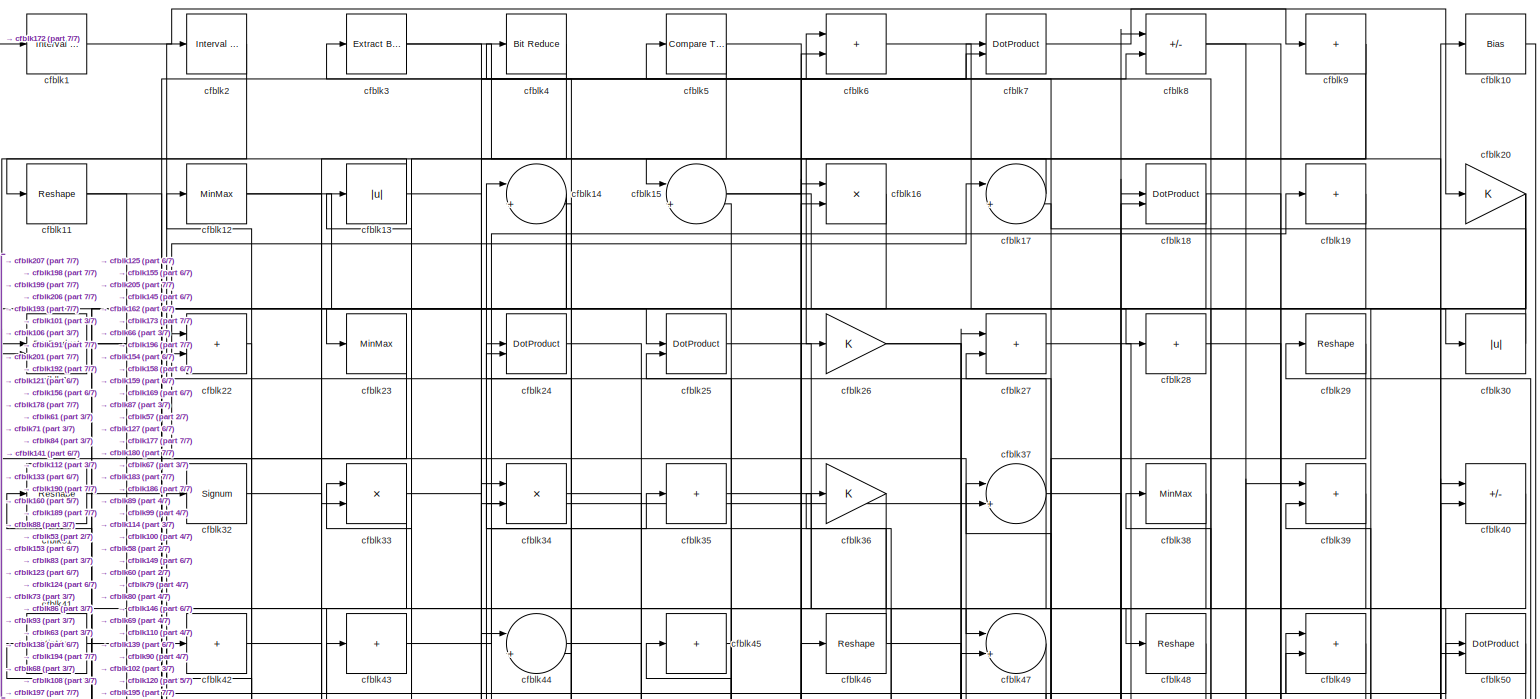
[diagram: root canvas - part 1/7, full width, top band]
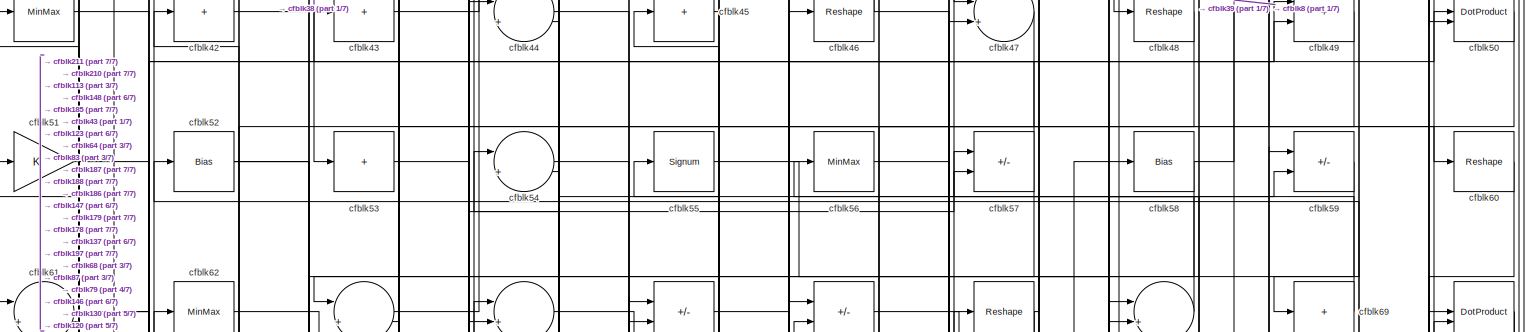
[diagram: root canvas - part 2/7, full width, top band]
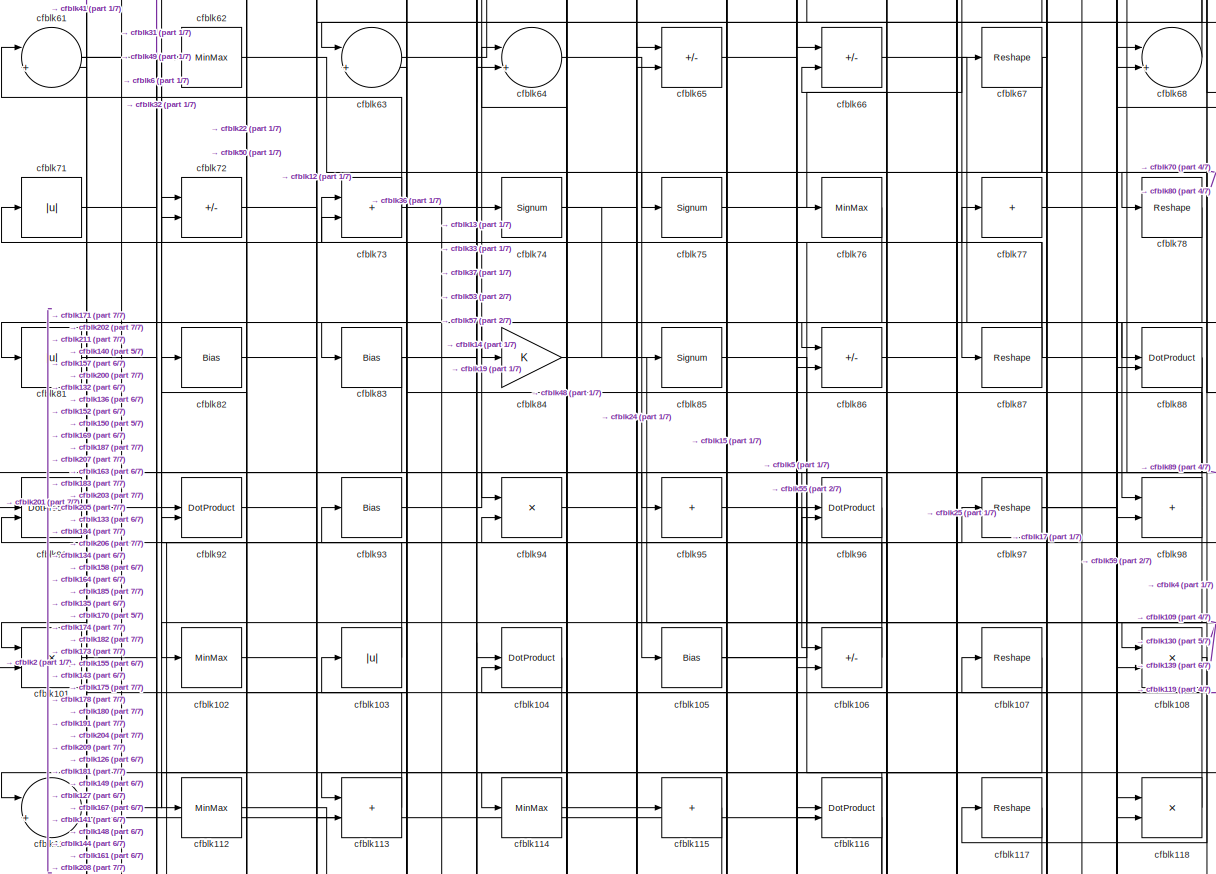
[diagram: root canvas - part 3/7, full width, middle band]
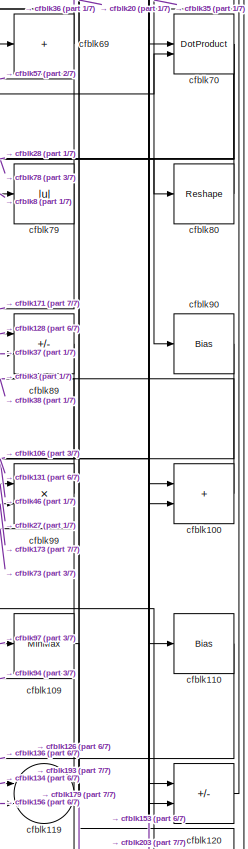
[diagram: root canvas - part 4/7, middle right region]
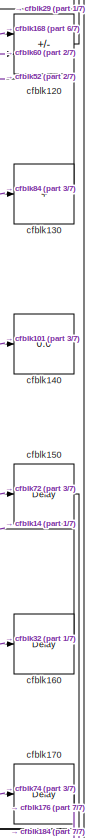
[diagram: root canvas - part 5/7, middle right region]
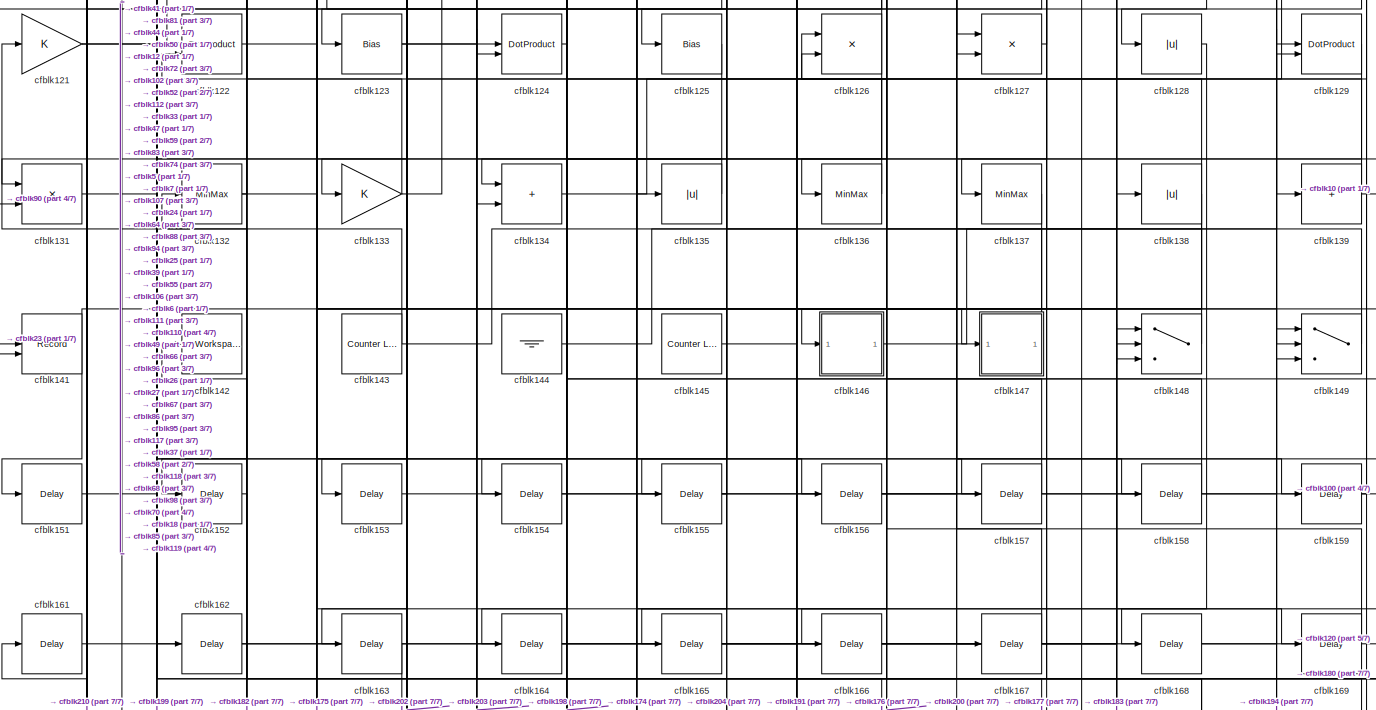
[diagram: root canvas - part 6/7, full width, middle band]
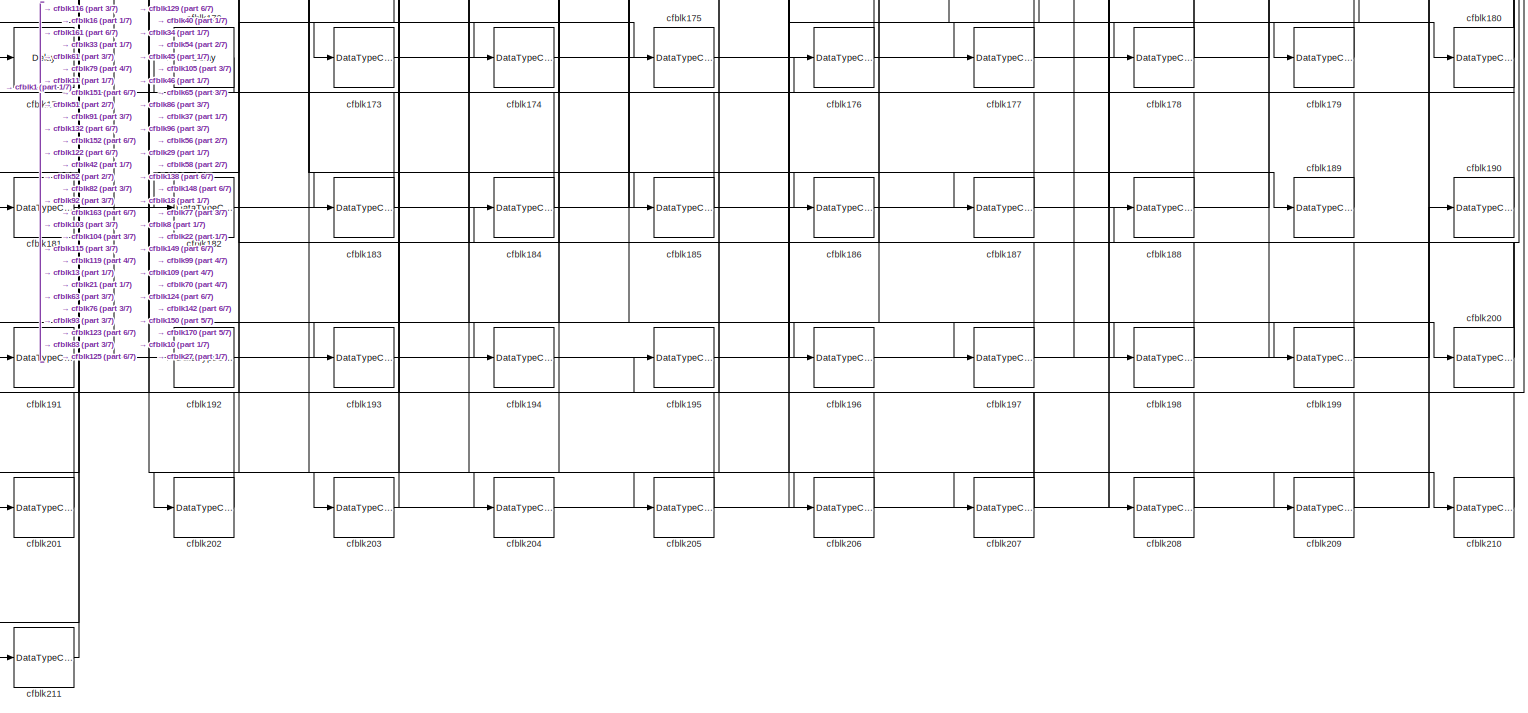
[diagram: root canvas - part 7/7, full width, bottom band]
MODEL slx_5fc4e832ac44
KIND model
CONFIG AbsTol = auto
CONFIG EnableMultiTasking = off
CONFIG FixedStep = auto
CONFIG MaxStep = auto
CONFIG MinStep = auto
CONFIG RelTol = 1e-3
CONFIG SampleTimeConstraint = Unconstrained
CONFIG SolverName = VariableStepAuto
CONFIG StartTime = 0.0
CONFIG StopTime = 10.0
BLOCK [Reference] cfblk1  REF=hdlsllib/Logic and Bit
Operations/Interval Test
  SourceBlock = hdlsllib/Logic and Bit\nOperations/Interval Test
  SourceType = Interval Test
BLOCK [Bias] cfblk10
  Bias = 0.0
  SaturateOnIntegerOverflow = off
BLOCK [Sum] cfblk100
  IconShape = rectangular
BLOCK [Product] cfblk101
  Inputs = */
  RndMeth = Zero
  SaturateOnIntegerOverflow = on
BLOCK [MinMax] cfblk102
BLOCK [Abs] cfblk103
  SaturateOnIntegerOverflow = off
BLOCK [DotProduct] cfblk104
  OutDataTypeStr = Inherit: Inherit via internal rule
BLOCK [Bias] cfblk105
  Bias = 0.0
  SaturateOnIntegerOverflow = off
BLOCK [Sum] cfblk106
  IconShape = rectangular
  Inputs = +-
BLOCK [Reshape] cfblk107
BLOCK [Product] cfblk108
  Inputs = */
  RndMeth = Zero
  SaturateOnIntegerOverflow = on
BLOCK [MinMax] cfblk109
BLOCK [Reshape] cfblk11
BLOCK [Bias] cfblk110
  Bias = 0.0
  SaturateOnIntegerOverflow = off
BLOCK [Sum] cfblk111
  Inputs = |++
BLOCK [MinMax] cfblk112
BLOCK [Sum] cfblk113
  IconShape = rectangular
BLOCK [MinMax] cfblk114
BLOCK [Sum] cfblk115
  IconShape = rectangular
  Inputs = +
BLOCK [DotProduct] cfblk116
  OutDataTypeStr = Inherit: Inherit via internal rule
BLOCK [Reshape] cfblk117
BLOCK [Product] cfblk118
  Inputs = */
  RndMeth = Zero
  SaturateOnIntegerOverflow = on
BLOCK [Sum] cfblk119
  Inputs = |++
BLOCK [MinMax] cfblk12
BLOCK [Sum] cfblk120
  IconShape = rectangular
  Inputs = +-
BLOCK [Gain] cfblk121
BLOCK [DotProduct] cfblk122
  OutDataTypeStr = Inherit: Inherit via internal rule
BLOCK [Bias] cfblk123
  Bias = 0.0
  SaturateOnIntegerOverflow = off
BLOCK [DotProduct] cfblk124
  OutDataTypeStr = Inherit: Inherit via internal rule
BLOCK [Bias] cfblk125
  Bias = 0.0
  SaturateOnIntegerOverflow = off
BLOCK [Product] cfblk126
  Inputs = */
  RndMeth = Zero
  SaturateOnIntegerOverflow = on
BLOCK [Product] cfblk127
  Inputs = */
  RndMeth = Zero
  SaturateOnIntegerOverflow = on
BLOCK [Abs] cfblk128
  SaturateOnIntegerOverflow = off
BLOCK [DotProduct] cfblk129
  OutDataTypeStr = Inherit: Inherit via internal rule
BLOCK [Abs] cfblk13
  SaturateOnIntegerOverflow = off
BLOCK [Sum] cfblk130
  IconShape = rectangular
  Inputs = +
BLOCK [Product] cfblk131
  Inputs = */
  RndMeth = Zero
  SaturateOnIntegerOverflow = on
BLOCK [MinMax] cfblk132
BLOCK [Gain] cfblk133
BLOCK [Sum] cfblk134
  IconShape = rectangular
BLOCK [Abs] cfblk135
  SaturateOnIntegerOverflow = off
BLOCK [MinMax] cfblk136
BLOCK [MinMax] cfblk137
BLOCK [Abs] cfblk138
  SaturateOnIntegerOverflow = off
BLOCK [Sum] cfblk139
  IconShape = rectangular
  Inputs = +
BLOCK [Sum] cfblk14
  Inputs = |++
BLOCK [Display] cfblk140
  Decimation = 1
BLOCK [Record] cfblk141
  CompatibilityTag = XY
  FileSettingsInternal = {"entries":[{"content":{"excelSettings":{"content":{},"type":"Streamout.ExcelSettings"}},"type":"Streamout.FileSettingStorage","uuid":""}],"packageUris":["http:\/\/schema.mathworks.com\/mf0\/streamout_blocks\/R2020a"],"version":"1.0"}
  Layout = [1 1]
  SignalsInternal = {"entries":[{"content":{"signals":[{"content":{"blockPath":[],"dimensions":[1],"domain":"","lineColor":"#a2142f","plots":[1],"port":1,"signalID":2030,"signalName":"XY Graph:1"},"type":"RecordBlkView.Signal","uuid":""},{"content":{"blockPath":[],"dimensions":[1],"domain":"","lineColor":"#139fff","plots":[1],"port":2,"signalID":2033,"signalName":"XY Graph:2"},"type":"RecordBlkView.Signal","uuid":""}...<+146ch>
  VisualizationBindings = {"xyplotplugin":{"info":[{"series":[{"bindingParametersList":[{"parameter":"X-Axis","signalID":2030,"signalName":"XY Graph:1"},{"parameter":"Y-Axis","signalID":2033,"signalName":"XY Graph:2"}],"seriesID":50669}],"subplotID":1}]}}
  st = -1
BLOCK [ToWorkspace] cfblk142
  MaxDataPoints = inf
  SampleTime = -1
  SaveFormat = Timeseries
  VariableName = simout
BLOCK [Reference] cfblk143  REF=hdlsllib/Sources/Counter
Limited
  SourceBlock = hdlsllib/Sources/Counter\nLimited
  SourceType = Counter Limited
BLOCK [Ground] cfblk144
BLOCK [Reference] cfblk145  REF=hdlsllib/Sources/Counter
Limited
  SourceBlock = hdlsllib/Sources/Counter\nLimited
  SourceType = Counter Limited
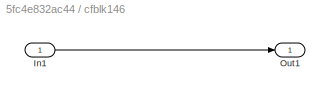
BLOCK [SubSystem] cfblk146
  LibrarySourceBlock = hdlsllib/Ports &\nSubsystems/Subsystem
BLOCK [Inport] cfblk146/In1
BLOCK [Outport] cfblk146/Out1
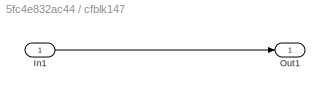
BLOCK [SubSystem] cfblk147
  LibrarySourceBlock = hdlsllib/Ports &\nSubsystems/Subsystem
BLOCK [Inport] cfblk147/In1
BLOCK [Outport] cfblk147/Out1
BLOCK [Switch] cfblk148
  InputSameDT = off
  SaturateOnIntegerOverflow = off
BLOCK [Switch] cfblk149
  InputSameDT = off
  SaturateOnIntegerOverflow = off
BLOCK [Sum] cfblk15
  Inputs = |++
BLOCK [Delay] cfblk150
  InputPortMap = u0
  SampleTime = 1
BLOCK [Delay] cfblk151
  InputPortMap = u0
  SampleTime = 1
BLOCK [Delay] cfblk152
  InputPortMap = u0
  SampleTime = 1
BLOCK [Delay] cfblk153
  InputPortMap = u0
  SampleTime = 1
BLOCK [Delay] cfblk154
  InputPortMap = u0
  SampleTime = 1
BLOCK [Delay] cfblk155
  InputPortMap = u0
  SampleTime = 1
BLOCK [Delay] cfblk156
  InputPortMap = u0
  SampleTime = 1
BLOCK [Delay] cfblk157
  InputPortMap = u0
  SampleTime = 1
BLOCK [Delay] cfblk158
  InputPortMap = u0
  SampleTime = 1
BLOCK [Delay] cfblk159
  InputPortMap = u0
  SampleTime = 1
BLOCK [Product] cfblk16
  Inputs = */
  RndMeth = Zero
  SaturateOnIntegerOverflow = on
BLOCK [Delay] cfblk160
  InputPortMap = u0
  SampleTime = 1
BLOCK [Delay] cfblk161
  InputPortMap = u0
  SampleTime = 1
BLOCK [Delay] cfblk162
  InputPortMap = u0
  SampleTime = 1
BLOCK [Delay] cfblk163
  InputPortMap = u0
  SampleTime = 1
BLOCK [Delay] cfblk164
  InputPortMap = u0
  SampleTime = 1
BLOCK [Delay] cfblk165
  InputPortMap = u0
  SampleTime = 1
BLOCK [Delay] cfblk166
  InputPortMap = u0
  SampleTime = 1
BLOCK [Delay] cfblk167
  InputPortMap = u0
  SampleTime = 1
BLOCK [Delay] cfblk168
  InputPortMap = u0
  SampleTime = 1
BLOCK [Delay] cfblk169
  InputPortMap = u0
  SampleTime = 1
BLOCK [Sum] cfblk17
  Inputs = |++
BLOCK [Delay] cfblk170
  InputPortMap = u0
  SampleTime = 1
BLOCK [Delay] cfblk171
  InputPortMap = u0
  SampleTime = 1
BLOCK [Delay] cfblk172
  InputPortMap = u0
  SampleTime = 1
BLOCK [DataTypeConversion] cfblk173
  RndMeth = Floor
  SaturateOnIntegerOverflow = off
BLOCK [DataTypeConversion] cfblk174
  OutDataTypeStr = uint8
  RndMeth = Floor
  SaturateOnIntegerOverflow = off
BLOCK [DataTypeConversion] cfblk175
  OutDataTypeStr = uint8
  RndMeth = Floor
  SaturateOnIntegerOverflow = off
BLOCK [DataTypeConversion] cfblk176
  OutDataTypeStr = uint8
  RndMeth = Floor
  SaturateOnIntegerOverflow = off
BLOCK [DataTypeConversion] cfblk177
  OutDataTypeStr = uint8
  RndMeth = Floor
  SaturateOnIntegerOverflow = off
BLOCK [DataTypeConversion] cfblk178
  RndMeth = Floor
  SaturateOnIntegerOverflow = off
BLOCK [DataTypeConversion] cfblk179
  OutDataTypeStr = uint8
  RndMeth = Floor
  SaturateOnIntegerOverflow = off
BLOCK [DotProduct] cfblk18
  OutDataTypeStr = Inherit: Inherit via internal rule
BLOCK [DataTypeConversion] cfblk180
  RndMeth = Floor
  SaturateOnIntegerOverflow = off
BLOCK [DataTypeConversion] cfblk181
  OutDataTypeStr = uint8
  RndMeth = Floor
  SaturateOnIntegerOverflow = off
BLOCK [DataTypeConversion] cfblk182
  OutDataTypeStr = uint8
  RndMeth = Floor
  SaturateOnIntegerOverflow = off
BLOCK [DataTypeConversion] cfblk183
  RndMeth = Floor
  SaturateOnIntegerOverflow = off
BLOCK [DataTypeConversion] cfblk184
  OutDataTypeStr = uint8
  RndMeth = Floor
  SaturateOnIntegerOverflow = off
BLOCK [DataTypeConversion] cfblk185
  OutDataTypeStr = uint8
  RndMeth = Floor
  SaturateOnIntegerOverflow = off
BLOCK [DataTypeConversion] cfblk186
  OutDataTypeStr = uint8
  RndMeth = Floor
  SaturateOnIntegerOverflow = off
BLOCK [DataTypeConversion] cfblk187
  OutDataTypeStr = uint8
  RndMeth = Floor
  SaturateOnIntegerOverflow = off
BLOCK [DataTypeConversion] cfblk188
  OutDataTypeStr = uint8
  RndMeth = Floor
  SaturateOnIntegerOverflow = off
BLOCK [DataTypeConversion] cfblk189
  OutDataTypeStr = uint8
  RndMeth = Floor
  SaturateOnIntegerOverflow = off
BLOCK [Sum] cfblk19
  IconShape = rectangular
  Inputs = +
BLOCK [DataTypeConversion] cfblk190
  OutDataTypeStr = uint8
  RndMeth = Floor
  SaturateOnIntegerOverflow = off
BLOCK [DataTypeConversion] cfblk191
  RndMeth = Floor
  SaturateOnIntegerOverflow = off
BLOCK [DataTypeConversion] cfblk192
  OutDataTypeStr = uint8
  RndMeth = Floor
  SaturateOnIntegerOverflow = off
BLOCK [DataTypeConversion] cfblk193
  OutDataTypeStr = uint8
  RndMeth = Floor
  SaturateOnIntegerOverflow = off
BLOCK [DataTypeConversion] cfblk194
  OutDataTypeStr = uint8
  RndMeth = Floor
  SaturateOnIntegerOverflow = off
BLOCK [DataTypeConversion] cfblk195
  OutDataTypeStr = uint8
  RndMeth = Floor
  SaturateOnIntegerOverflow = off
BLOCK [DataTypeConversion] cfblk196
  OutDataTypeStr = uint8
  RndMeth = Floor
  SaturateOnIntegerOverflow = off
BLOCK [DataTypeConversion] cfblk197
  RndMeth = Floor
  SaturateOnIntegerOverflow = off
BLOCK [DataTypeConversion] cfblk198
  OutDataTypeStr = uint8
  RndMeth = Floor
  SaturateOnIntegerOverflow = off
BLOCK [DataTypeConversion] cfblk199
  OutDataTypeStr = uint8
  RndMeth = Floor
  SaturateOnIntegerOverflow = off
BLOCK [Reference] cfblk2  REF=hdlsllib/Logic and Bit
Operations/Interval Test
  SourceBlock = hdlsllib/Logic and Bit\nOperations/Interval Test
  SourceType = Interval Test
BLOCK [Gain] cfblk20
BLOCK [DataTypeConversion] cfblk200
  RndMeth = Floor
  SaturateOnIntegerOverflow = off
BLOCK [DataTypeConversion] cfblk201
  OutDataTypeStr = uint8
  RndMeth = Floor
  SaturateOnIntegerOverflow = off
BLOCK [DataTypeConversion] cfblk202
  OutDataTypeStr = uint8
  RndMeth = Floor
  SaturateOnIntegerOverflow = off
BLOCK [DataTypeConversion] cfblk203
  RndMeth = Floor
  SaturateOnIntegerOverflow = off
BLOCK [DataTypeConversion] cfblk204
  OutDataTypeStr = uint8
  RndMeth = Floor
  SaturateOnIntegerOverflow = off
BLOCK [DataTypeConversion] cfblk205
  OutDataTypeStr = uint8
  RndMeth = Floor
  SaturateOnIntegerOverflow = off
BLOCK [DataTypeConversion] cfblk206
  OutDataTypeStr = uint8
  RndMeth = Floor
  SaturateOnIntegerOverflow = off
BLOCK [DataTypeConversion] cfblk207
  RndMeth = Floor
  SaturateOnIntegerOverflow = off
BLOCK [DataTypeConversion] cfblk208
  OutDataTypeStr = uint8
  RndMeth = Floor
  SaturateOnIntegerOverflow = off
BLOCK [DataTypeConversion] cfblk209
  OutDataTypeStr = uint8
  RndMeth = Floor
  SaturateOnIntegerOverflow = off
BLOCK [DotProduct] cfblk21
  OutDataTypeStr = Inherit: Inherit via internal rule
BLOCK [DataTypeConversion] cfblk210
  OutDataTypeStr = uint8
  RndMeth = Floor
  SaturateOnIntegerOverflow = off
BLOCK [DataTypeConversion] cfblk211
  OutDataTypeStr = uint8
  RndMeth = Floor
  SaturateOnIntegerOverflow = off
BLOCK [Sum] cfblk22
  IconShape = rectangular
BLOCK [MinMax] cfblk23
BLOCK [DotProduct] cfblk24
  OutDataTypeStr = Inherit: Inherit via internal rule
BLOCK [DotProduct] cfblk25
  OutDataTypeStr = Inherit: Inherit via internal rule
BLOCK [Gain] cfblk26
BLOCK [Sum] cfblk27
  IconShape = rectangular
BLOCK [Sum] cfblk28
  IconShape = rectangular
  Inputs = +
BLOCK [Reshape] cfblk29
BLOCK [Reference] cfblk3  REF=simulink/Logic and Bit
Operations/Extract Bits
  LibrarySourceBlock = hdlsllib/Logic and Bit\nOperations/Extract Bits
  SourceBlock = simulink/Logic and Bit\nOperations/Extract Bits
  SourceType = Extract Bits
BLOCK [Abs] cfblk30
  SaturateOnIntegerOverflow = off
BLOCK [Reshape] cfblk31
BLOCK [Signum] cfblk32
BLOCK [Product] cfblk33
  Inputs = */
  RndMeth = Zero
  SaturateOnIntegerOverflow = on
BLOCK [Product] cfblk34
  Inputs = */
  RndMeth = Zero
  SaturateOnIntegerOverflow = on
BLOCK [Sum] cfblk35
  IconShape = rectangular
  Inputs = +
BLOCK [Gain] cfblk36
BLOCK [Sum] cfblk37
  Inputs = |++
BLOCK [MinMax] cfblk38
BLOCK [Sum] cfblk39
  IconShape = rectangular
BLOCK [Reference] cfblk4  REF=hdlsllib/Logic and Bit
Operations/Bit Reduce
  SourceBlock = hdlsllib/Logic and Bit\nOperations/Bit Reduce
  SourceType = Bit Reduce
BLOCK [Sum] cfblk40
  IconShape = rectangular
  Inputs = +-
BLOCK [MinMax] cfblk41
BLOCK [Sum] cfblk42
  IconShape = rectangular
  Inputs = +
BLOCK [Sum] cfblk43
  IconShape = rectangular
  Inputs = +
BLOCK [Sum] cfblk44
  Inputs = |++
BLOCK [Sum] cfblk45
  IconShape = rectangular
  Inputs = +
BLOCK [Reshape] cfblk46
BLOCK [Sum] cfblk47
  Inputs = |++
BLOCK [Reshape] cfblk48
BLOCK [Sum] cfblk49
  IconShape = rectangular
BLOCK [Reference] cfblk5  REF=hdlsllib/Logic and Bit
Operations/Compare
To Constant
  SourceBlock = hdlsllib/Logic and Bit\nOperations/Compare\nTo Constant
  SourceType = Compare To Constant
BLOCK [DotProduct] cfblk50
  OutDataTypeStr = Inherit: Inherit via internal rule
BLOCK [Gain] cfblk51
BLOCK [Bias] cfblk52
  Bias = 0.0
  SaturateOnIntegerOverflow = off
BLOCK [Sum] cfblk53
  IconShape = rectangular
  Inputs = +
BLOCK [Sum] cfblk54
  Inputs = |++
BLOCK [Signum] cfblk55
BLOCK [MinMax] cfblk56
BLOCK [Sum] cfblk57
  IconShape = rectangular
  Inputs = +-
BLOCK [Bias] cfblk58
  Bias = 0.0
  SaturateOnIntegerOverflow = off
BLOCK [Sum] cfblk59
  IconShape = rectangular
  Inputs = +-
BLOCK [Sum] cfblk6
  IconShape = rectangular
BLOCK [Reshape] cfblk60
BLOCK [Sum] cfblk61
  Inputs = |++
BLOCK [MinMax] cfblk62
BLOCK [Sum] cfblk63
  Inputs = |++
BLOCK [Sum] cfblk64
  Inputs = |++
BLOCK [Sum] cfblk65
  IconShape = rectangular
  Inputs = +-
BLOCK [Sum] cfblk66
  IconShape = rectangular
  Inputs = +-
BLOCK [Reshape] cfblk67
BLOCK [Sum] cfblk68
  Inputs = |++
BLOCK [Sum] cfblk69
  IconShape = rectangular
  Inputs = +
BLOCK [DotProduct] cfblk7
  OutDataTypeStr = Inherit: Inherit via internal rule
BLOCK [DotProduct] cfblk70
  OutDataTypeStr = Inherit: Inherit via internal rule
BLOCK [Abs] cfblk71
  SaturateOnIntegerOverflow = off
BLOCK [Sum] cfblk72
  IconShape = rectangular
  Inputs = +-
BLOCK [Sum] cfblk73
  IconShape = rectangular
BLOCK [Signum] cfblk74
BLOCK [Signum] cfblk75
BLOCK [MinMax] cfblk76
BLOCK [Sum] cfblk77
  IconShape = rectangular
  Inputs = +
BLOCK [Reshape] cfblk78
BLOCK [Abs] cfblk79
  SaturateOnIntegerOverflow = off
BLOCK [Sum] cfblk8
  IconShape = rectangular
  Inputs = +-
BLOCK [Reshape] cfblk80
BLOCK [Abs] cfblk81
  SaturateOnIntegerOverflow = off
BLOCK [Bias] cfblk82
  Bias = 0.0
  SaturateOnIntegerOverflow = off
BLOCK [Bias] cfblk83
  Bias = 0.0
  SaturateOnIntegerOverflow = off
BLOCK [Gain] cfblk84
BLOCK [Signum] cfblk85
BLOCK [Sum] cfblk86
  IconShape = rectangular
  Inputs = +-
BLOCK [Reshape] cfblk87
BLOCK [DotProduct] cfblk88
  OutDataTypeStr = Inherit: Inherit via internal rule
BLOCK [Sum] cfblk89
  IconShape = rectangular
  Inputs = +-
BLOCK [Sum] cfblk9
  IconShape = rectangular
  Inputs = +
BLOCK [Bias] cfblk90
  Bias = 0.0
  SaturateOnIntegerOverflow = off
BLOCK [DotProduct] cfblk91
  OutDataTypeStr = Inherit: Inherit via internal rule
BLOCK [DotProduct] cfblk92
  OutDataTypeStr = Inherit: Inherit via internal rule
BLOCK [Bias] cfblk93
  Bias = 0.0
  SaturateOnIntegerOverflow = off
BLOCK [Product] cfblk94
  Inputs = */
  RndMeth = Zero
  SaturateOnIntegerOverflow = on
BLOCK [Sum] cfblk95
  IconShape = rectangular
  Inputs = +
BLOCK [DotProduct] cfblk96
  OutDataTypeStr = Inherit: Inherit via internal rule
BLOCK [Reshape] cfblk97
BLOCK [Sum] cfblk98
  IconShape = rectangular
BLOCK [Product] cfblk99
  Inputs = */
  RndMeth = Zero
  SaturateOnIntegerOverflow = on
LINE cfblk100:1 -> cfblk3:1
LINE cfblk101:1 -> cfblk140:1
LINE cfblk102:1 -> cfblk169:1
LINE cfblk103:1 -> cfblk32:1
LINE cfblk104:1 -> cfblk183:1
NET cfblk105:1 -> cfblk209:1, cfblk77:1
LINE cfblk106:1 -> cfblk41:1
LINE cfblk107:1 -> cfblk134:1
LINE cfblk108:1 -> cfblk117:1
NET cfblk109:1 -> cfblk179:1, cfblk73:1
LINE cfblk10:1 -> cfblk195:1
LINE cfblk110:1 -> cfblk136:1
LINE cfblk111:1 -> cfblk62:1
LINE cfblk112:1 -> cfblk134:2
LINE cfblk113:1 -> cfblk82:1
LINE cfblk114:1 -> cfblk97:1
LINE cfblk115:1 -> cfblk173:1
NET cfblk116:1 -> cfblk111:1, cfblk181:1
LINE cfblk117:1 -> cfblk141:2
LINE cfblk118:1 -> cfblk61:1
NET cfblk119:1 -> cfblk126:1, cfblk193:1, cfblk94:2
NET cfblk11:1 -> cfblk192:1, cfblk50:2
LINE cfblk120:1 -> cfblk29:1
NET cfblk121:1 -> cfblk44:1, cfblk50:1
LINE cfblk122:1 -> cfblk175:1
NET cfblk123:1 -> cfblk198:1, cfblk7:1
LINE cfblk124:1 -> cfblk24:1
LINE cfblk125:1 -> cfblk204:1
NET cfblk126:1 -> cfblk111:2, cfblk154:1
LINE cfblk127:1 -> cfblk37:1
LINE cfblk128:1 -> cfblk168:1
LINE cfblk129:1 -> cfblk174:1
NET cfblk12:1 -> cfblk25:1, cfblk88:2
LINE cfblk130:1 -> cfblk52:1
LINE cfblk131:1 -> cfblk162:1
NET cfblk132:1 -> cfblk147:1, cfblk72:2
NET cfblk133:1 -> cfblk12:1, cfblk74:1
LINE cfblk134:1 -> cfblk119:1
LINE cfblk135:1 -> cfblk131:1
LINE cfblk136:1 -> cfblk72:1
LINE cfblk137:1 -> cfblk151:1
NET cfblk138:1 -> cfblk165:1, cfblk166:1, cfblk44:2
NET cfblk139:1 -> cfblk10:1, cfblk33:1
NET cfblk13:1 -> cfblk11:1, cfblk86:1
NET cfblk143:1 -> cfblk106:2, cfblk121:1
LINE cfblk144:1 -> cfblk98:2
LINE cfblk145:1 -> cfblk49:1
LINE cfblk146/In1:1 -> cfblk146/Out1:1
LINE cfblk146:1 -> cfblk59:1
LINE cfblk147/In1:1 -> cfblk147/Out1:1
LINE cfblk147:1 -> cfblk55:1
LINE cfblk148:1 -> cfblk107:1
LINE cfblk149:1 -> cfblk96:1
NET cfblk14:1 -> cfblk21:2, cfblk23:1
LINE cfblk150:1 -> cfblk184:1
LINE cfblk151:1 -> cfblk199:1
LINE cfblk152:1 -> cfblk182:1
LINE cfblk153:1 -> cfblk100:1
LINE cfblk154:1 -> cfblk47:2
LINE cfblk155:1 -> cfblk25:2
LINE cfblk156:1 -> cfblk119:2
LINE cfblk157:1 -> cfblk126:2
LINE cfblk158:1 -> cfblk64:1
LINE cfblk159:1 -> cfblk39:2
NET cfblk15:1 -> cfblk28:1, cfblk7:2
LINE cfblk160:1 -> cfblk14:2
LINE cfblk161:1 -> cfblk68:1
LINE cfblk162:1 -> cfblk6:2
LINE cfblk163:1 -> cfblk202:1
LINE cfblk164:1 -> cfblk118:2
LINE cfblk165:1 -> cfblk148:2
LINE cfblk166:1 -> cfblk129:2
LINE cfblk167:1 -> cfblk66:2
LINE cfblk168:1 -> cfblk120:1
LINE cfblk169:1 -> cfblk27:1
LINE cfblk16:1 -> cfblk191:1
LINE cfblk170:1 -> cfblk176:1
LINE cfblk171:1 -> cfblk61:2
LINE cfblk172:1 -> cfblk1:1
NET cfblk173:1 -> cfblk46:1, cfblk99:2
LINE cfblk174:1 -> cfblk115:1
LINE cfblk175:1 -> cfblk116:2
LINE cfblk176:1 -> cfblk122:1
LINE cfblk177:1 -> cfblk122:2
NET cfblk178:1 -> cfblk116:1, cfblk22:1
LINE cfblk179:1 -> cfblk56:1
LINE cfblk17:1 -> cfblk15:1
NET cfblk180:1 -> cfblk124:1, cfblk142:1, cfblk27:2
LINE cfblk181:1 -> cfblk65:1
LINE cfblk182:1 -> cfblk65:2
NET cfblk183:1 -> cfblk129:1, cfblk172:1, cfblk8:1
LINE cfblk184:1 -> cfblk104:1
LINE cfblk185:1 -> cfblk104:2
LINE cfblk186:1 -> cfblk18:2
LINE cfblk187:1 -> cfblk54:1
LINE cfblk188:1 -> cfblk54:2
LINE cfblk189:1 -> cfblk18:1
NET cfblk18:1 -> cfblk149:1, cfblk153:1
LINE cfblk190:1 -> cfblk42:1
NET cfblk191:1 -> cfblk138:1, cfblk86:2
LINE cfblk192:1 -> cfblk16:1
LINE cfblk193:1 -> cfblk16:2
LINE cfblk194:1 -> cfblk149:3
LINE cfblk195:1 -> cfblk40:1
LINE cfblk196:1 -> cfblk40:2
NET cfblk197:1 -> cfblk13:1, cfblk58:1
LINE cfblk198:1 -> cfblk34:1
LINE cfblk199:1 -> cfblk34:2
LINE cfblk19:1 -> cfblk101:1
LINE cfblk1:1 -> cfblk20:1
NET cfblk200:1 -> cfblk132:1, cfblk188:1, cfblk96:2
LINE cfblk201:1 -> cfblk91:1
LINE cfblk202:1 -> cfblk91:2
NET cfblk203:1 -> cfblk148:1, cfblk190:1, cfblk63:2, cfblk70:1
LINE cfblk204:1 -> cfblk76:1
LINE cfblk205:1 -> cfblk103:1
LINE cfblk206:1 -> cfblk45:1
NET cfblk207:1 -> cfblk21:1, cfblk93:1
LINE cfblk208:1 -> cfblk92:1
LINE cfblk209:1 -> cfblk92:2
NET cfblk20:1 -> cfblk22:2, cfblk48:1, cfblk69:1
LINE cfblk210:1 -> cfblk161:1
LINE cfblk211:1 -> cfblk51:1
NET cfblk21:1 -> cfblk17:1, cfblk47:1
LINE cfblk22:1 -> cfblk112:1
LINE cfblk23:1 -> cfblk141:1
LINE cfblk24:1 -> cfblk108:2
LINE cfblk25:1 -> cfblk87:1
NET cfblk26:1 -> cfblk158:1, cfblk159:1
LINE cfblk27:1 -> cfblk99:1
LINE cfblk28:1 -> cfblk80:1
LINE cfblk29:1 -> cfblk177:1
LINE cfblk2:1 -> cfblk101:2
LINE cfblk30:1 -> cfblk5:1
LINE cfblk31:1 -> cfblk84:1
LINE cfblk32:1 -> cfblk160:1
NET cfblk33:1 -> cfblk201:1, cfblk88:1
LINE cfblk34:1 -> cfblk197:1
LINE cfblk35:1 -> cfblk90:1
LINE cfblk36:1 -> cfblk63:1
NET cfblk37:1 -> cfblk196:1, cfblk2:1, cfblk89:2
LINE cfblk38:1 -> cfblk53:1
LINE cfblk39:1 -> cfblk125:1
NET cfblk3:1 -> cfblk110:1, cfblk8:2
LINE cfblk40:1 -> cfblk194:1
LINE cfblk41:1 -> cfblk156:1
LINE cfblk42:1 -> cfblk189:1
LINE cfblk43:1 -> cfblk35:1
LINE cfblk44:1 -> cfblk149:2
LINE cfblk45:1 -> cfblk205:1
NET cfblk46:1 -> cfblk100:2, cfblk24:2
LINE cfblk47:1 -> cfblk133:1
LINE cfblk48:1 -> cfblk114:1
LINE cfblk49:1 -> cfblk146:1
LINE cfblk4:1 -> cfblk83:1
LINE cfblk50:1 -> cfblk102:1
LINE cfblk51:1 -> cfblk210:1
NET cfblk52:1 -> cfblk148:3, cfblk185:1
LINE cfblk53:1 -> cfblk64:2
LINE cfblk54:1 -> cfblk186:1
LINE cfblk55:1 -> cfblk68:2
LINE cfblk56:1 -> cfblk178:1
NET cfblk57:1 -> cfblk113:2, cfblk43:1
NET cfblk58:1 -> cfblk137:1, cfblk39:1
LINE cfblk59:1 -> cfblk123:1
NET cfblk5:1 -> cfblk124:2, cfblk66:1
LINE cfblk60:1 -> cfblk120:2
NET cfblk61:1 -> cfblk6:1, cfblk95:1
LINE cfblk62:1 -> cfblk75:1
LINE cfblk63:1 -> cfblk19:1
LINE cfblk64:1 -> cfblk105:1
LINE cfblk65:1 -> cfblk180:1
LINE cfblk66:1 -> cfblk98:1
NET cfblk67:1 -> cfblk127:2, cfblk155:1, cfblk17:2
LINE cfblk68:1 -> cfblk4:1
LINE cfblk69:1 -> cfblk36:1
LINE cfblk6:1 -> cfblk30:1
NET cfblk70:1 -> cfblk128:1, cfblk89:1, cfblk94:1
LINE cfblk71:1 -> cfblk49:2
LINE cfblk72:1 -> cfblk150:1
NET cfblk73:1 -> cfblk31:1, cfblk37:2
NET cfblk74:1 -> cfblk170:1, cfblk85:1
LINE cfblk75:1 -> cfblk67:1
LINE cfblk76:1 -> cfblk203:1
LINE cfblk77:1 -> cfblk208:1
LINE cfblk78:1 -> cfblk81:1
NET cfblk79:1 -> cfblk171:1, cfblk57:1
LINE cfblk7:1 -> cfblk9:1
LINE cfblk80:1 -> cfblk78:1
LINE cfblk81:1 -> cfblk157:1
LINE cfblk82:1 -> cfblk187:1
NET cfblk83:1 -> cfblk163:1, cfblk206:1, cfblk211:1, cfblk57:2
LINE cfblk84:1 -> cfblk130:1
LINE cfblk85:1 -> cfblk139:1
LINE cfblk86:1 -> cfblk167:1
NET cfblk87:1 -> cfblk15:2, cfblk59:2, cfblk71:1
NET cfblk88:1 -> cfblk113:1, cfblk164:1
LINE cfblk89:1 -> cfblk106:1
NET cfblk8:1 -> cfblk60:1, cfblk79:1
LINE cfblk90:1 -> cfblk131:2
LINE cfblk91:1 -> cfblk200:1
LINE cfblk92:1 -> cfblk207:1
LINE cfblk93:1 -> cfblk14:1
LINE cfblk94:1 -> cfblk135:1
LINE cfblk95:1 -> cfblk127:1
LINE cfblk96:1 -> cfblk152:1
NET cfblk97:1 -> cfblk109:1, cfblk118:1, cfblk70:2
NET cfblk98:1 -> cfblk108:1, cfblk73:2
LINE cfblk99:1 -> cfblk38:1
NET cfblk9:1 -> cfblk26:1, cfblk33:2
note: NET lines group one-source signal fan-out (src -> all destinations, sorted); 1:1 wires keep LINE
